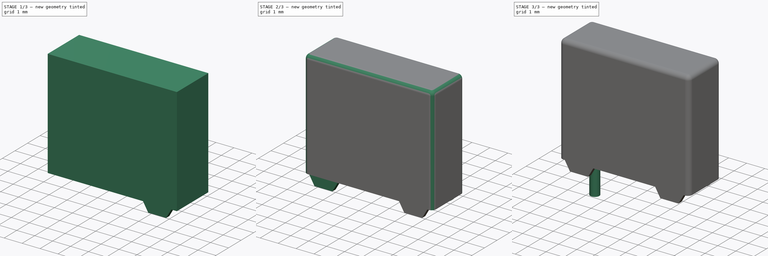
[diagram: build sequence overview — one tinted view per stage of 3, left to right]
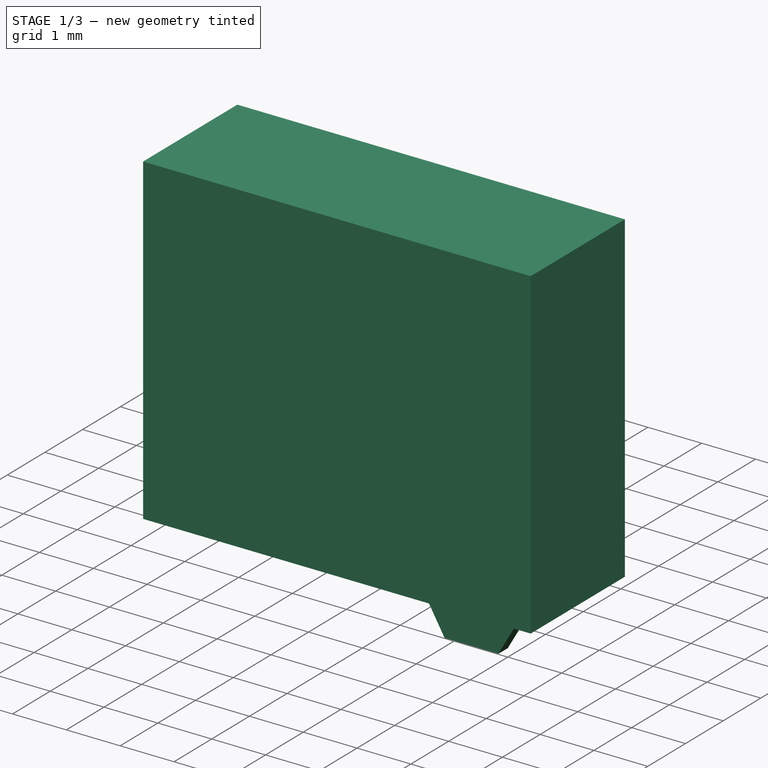
[diagram: stage 1 of 3 — iso view after this stage's code; geometry added in this stage tinted green]
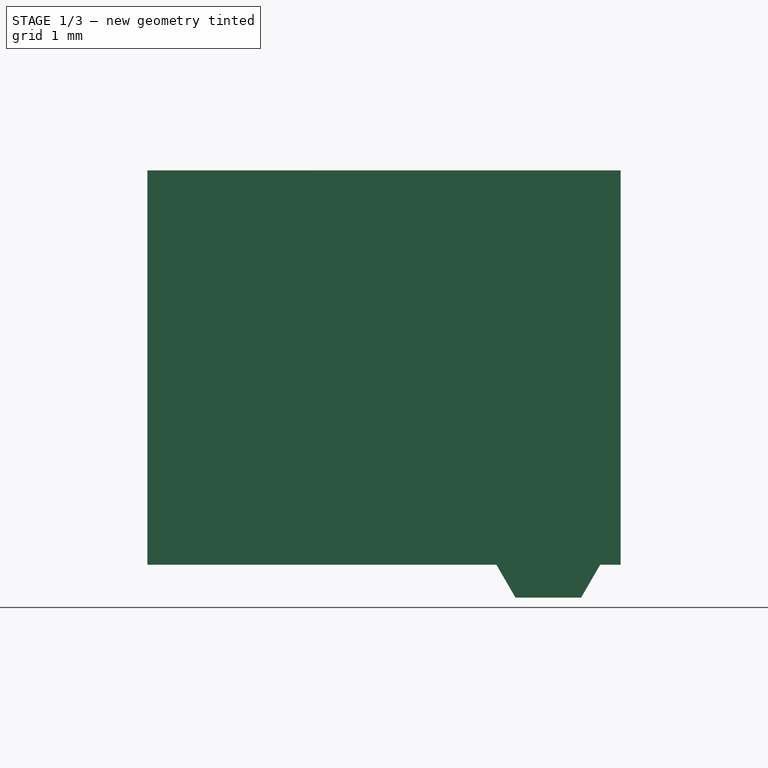
[diagram: stage 1 of 3 — front view after this stage's code; geometry added in this stage tinted green]
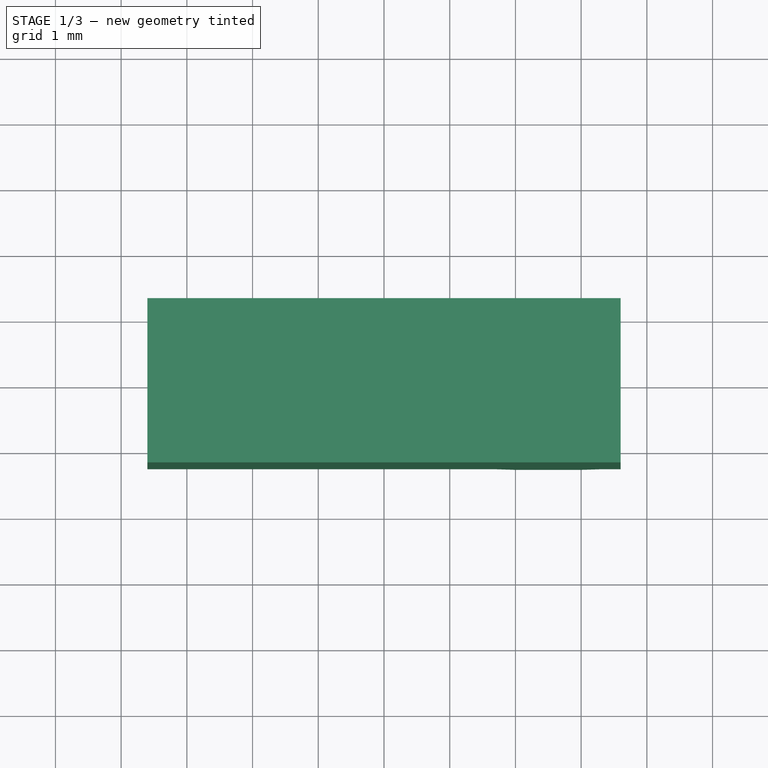
[diagram: stage 1 of 3 — top view after this stage's code; geometry added in this stage tinted green]
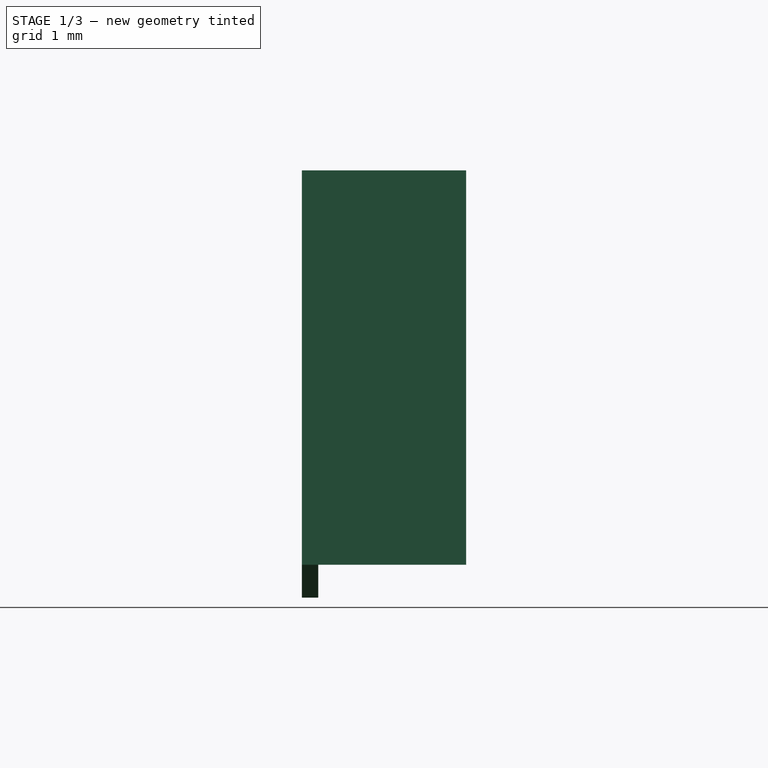
[diagram: stage 1 of 3 — right view after this stage's code; geometry added in this stage tinted green]
FCSTD DOCUMENT  (FreeCAD 0.19R16699 (Git))
Label: Kemet R82 Series
License: All rights reserved
LicenseURL: http://en.wikipedia.org/wiki/All_rights_reserved
objects: Sketcher::SketchObject×3, PartDesign::Pad×3, PartDesign::Body×3, PartDesign::Mirrored×2, Spreadsheet::Sheet×1, PartDesign::MultiTransform×1, PartDesign::FeatureBase×1, PartDesign::Fillet×1
note: 17 computed .brp shape members not serialized (recipe doc carries the construction recipe); baked Part::Feature solids carry a one-line shape summary decoded from their .brp

FEATURE [Spreadsheet::Sheet] Spreadsheet  label="Data"
  cells = A3=P; B3(P)==5mm; A4=B; B4(B)==2.5mm; A5=H; B5(H)==6.5mm; A6=L; B6(L)==7.2mm; A7=d; B7(d)==0.5mm; A8=LL; B8(LL)==2mm
FEATURE [Sketcher::SketchObject] Sketch  label="CaseSketch"
  MapMode = 5
  Placement = pos=(0,0,0) rot=(1,0,0;1.5708rad)
  Support = -> [XZ_Plane]
  expr: Constraints[10] = Data.H
  expr: Constraints[9] = Data.H - 0.5mm
  expr: Constraints[8] = Data.L
  sketch-geometry (4):
    g0: LineSegment StartX=-3.6 StartY=0.5 StartZ=0 EndX=3.6 EndY=0.5 EndZ=0
    g1: LineSegment StartX=3.6 StartY=0.5 StartZ=0 EndX=3.6 EndY=6.5 EndZ=0
    g2: LineSegment StartX=3.6 StartY=6.5 StartZ=0 EndX=-3.6 EndY=6.5 EndZ=0
    g3: LineSegment StartX=-3.6 StartY=6.5 StartZ=0 EndX=-3.6 EndY=0.5 EndZ=0
  constraints (11):
    c: Coincident(g0,g1)
    c: Coincident(g1,g2)
    c: Coincident(g2,g3)
    c: Coincident(g3,g0)
    c: Horizontal(g0)
    c: Vertical(g1)
    c: Vertical(g3)
    c: Symmetric(g1,g2,g-2)
    c: DistanceX(g2,g2) = 7.2
    c: DistanceY(g1,g1) = 6
    c: DistanceY(g-1,g1) = 6.5
FEATURE [PartDesign::Pad] Pad  label="CasePad"
  Length = 2.5
  Length2 = 100
  Midplane = true
  Placement = pos=(0,0,0) rot=(1,0,0;1.5708rad)
  Profile = -> Sketch
  Type = 0
  expr: Length = Data.B
FEATURE [Sketcher::SketchObject] Sketch002  label="StandoffSketch"
  AttachmentOffset = pos=(0,0,1) rot=(0,0,1;0rad)
  MapMode = 5
  Placement = pos=(0,-1,-2e-16) rot=(1,0,0;1.5708rad)
  Support = -> [XZ_Plane]
  expr: AttachmentOffset.Base.z = Data.B / 2 - 0.25mm
  expr: Constraints[13] = Data.P / 2
  sketch-geometry (5):
    g0: LineSegment StartX=2 StartY=-1e-16 StartZ=0 EndX=3 EndY=-1e-16 EndZ=0
    g1: LineSegment StartX=3 StartY=-1e-16 StartZ=0 EndX=3.28868 EndY=0.5 EndZ=0
    g2: LineSegment StartX=3.28868 StartY=0.5 StartZ=0 EndX=1.71132 EndY=0.5 EndZ=0
    g3: LineSegment StartX=1.71132 StartY=0.5 StartZ=0 EndX=2 EndY=-1e-16 EndZ=0
    g4: GeomPoint X=2.5 Y=0 Z=0
  constraints (14):
    c: Coincident(g0,g1)
    c: Coincident(g1,g2)
    c: Coincident(g2,g3)
    c: Coincident(g3,g0)
    c: Horizontal(g0)
    c: PointOnObject(g0,g-1)
    c: Equal(g3,g1)
    c: DistanceY(g1,g1) = 0.5
    c: Angle(g1,g0) = 2.0944
    c: Angle(g0,g3) = 2.0944
    c: PointOnObject(g4,g0)
    c: DistanceX(g4,g0) = 0.5
    c: DistanceX(g0,g4) = 0.5
    c: DistanceX(g-1,g4) = 2.5
FEATURE [PartDesign::Pad] Pad002  label="StandoffPad"
  BaseFeature = -> Pad
  Length = 0.25
  Length2 = 100
  Placement = pos=(0,0,0) rot=(1,0,0;1.5708rad)
  Profile = -> Sketch002
  Type = 0
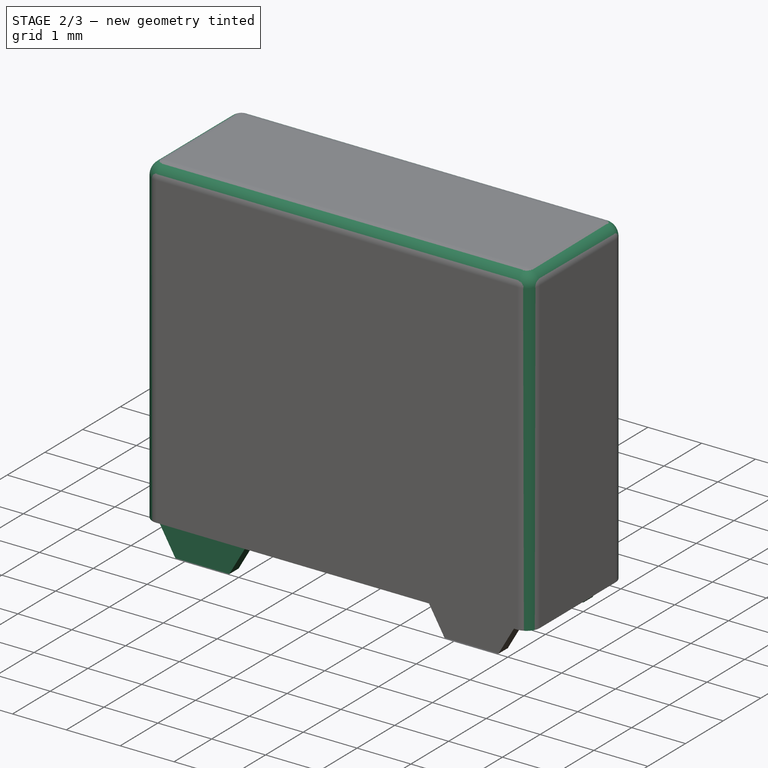
[diagram: stage 2 of 3 — iso view after this stage's code; geometry added in this stage tinted green]
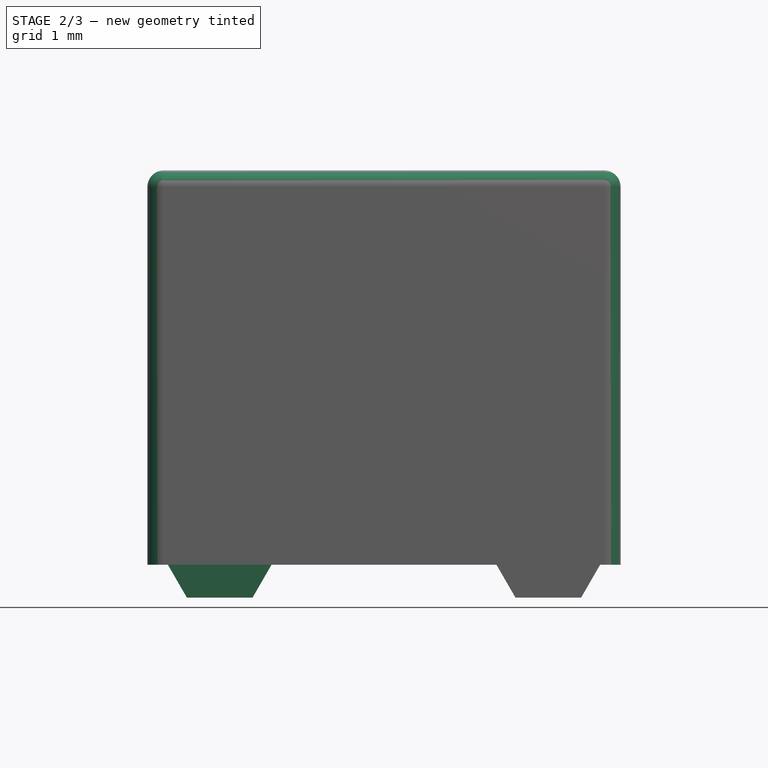
[diagram: stage 2 of 3 — front view after this stage's code; geometry added in this stage tinted green]
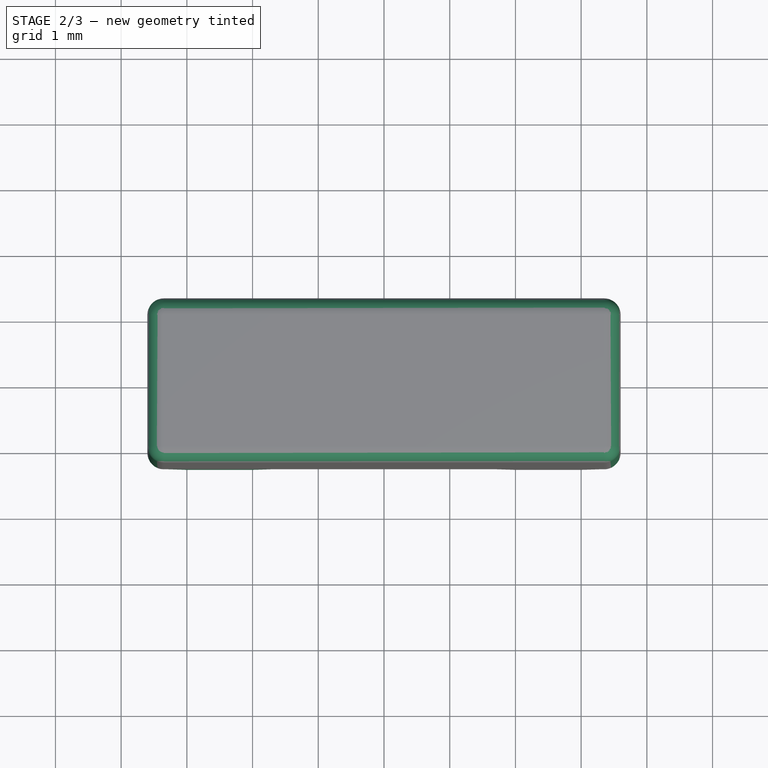
[diagram: stage 2 of 3 — top view after this stage's code; geometry added in this stage tinted green]
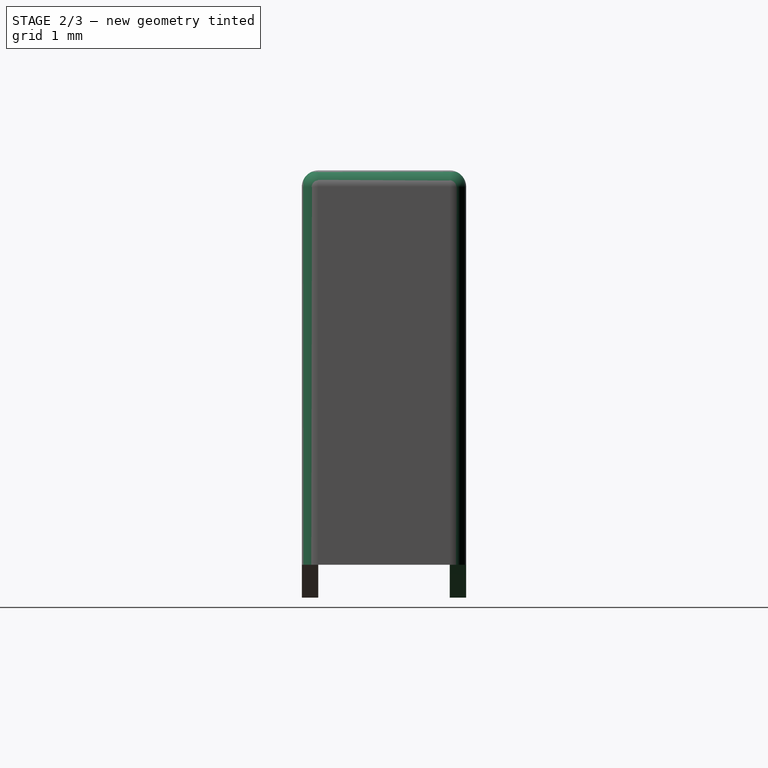
[diagram: stage 2 of 3 — right view after this stage's code; geometry added in this stage tinted green]
FEATURE [PartDesign::Mirrored] Mirrored
  MirrorPlane = -> YZ_Plane
  Placement = pos=(0,0,0) rot=(1,0,0;1.5708rad)
FEATURE [PartDesign::Mirrored] Mirrored001
  MirrorPlane = -> XZ_Plane
  Placement = pos=(0,0,0) rot=(1,0,0;1.5708rad)
FEATURE [PartDesign::MultiTransform] MultiTransform  label="StandoffMultiTransform"
  BaseFeature = -> Pad002
  Originals = -> [Pad002]
  Placement = pos=(0,0,0) rot=(1,0,0;1.5708rad)
  Refine = true
  Transformations = -> [Mirrored,Mirrored001]
FEATURE [PartDesign::Body] Body002  label="LeadClone"
  BaseFeature = -> Body001
  Group = -> [Clone]
  Origin = -> Origin002
  Placement = pos=(5,0,0) rot=(0,0,1;0rad)
  Tip = -> Clone
  expr: Placement.Base.x = Data.P
FEATURE [PartDesign::Fillet] Fillet
  Base = -> MultiTransform [Edge54,Edge56,Edge52,Edge55,Edge35,Edge37,Edge36,Edge53]
  BaseFeature = -> MultiTransform
  Placement = pos=(0,0,0) rot=(1,0,0;1.5708rad)
  Radius = 0.25
FEATURE [PartDesign::Body] Body  label="Case"
  Group = -> [Sketch,Pad,Sketch002,Pad002,MultiTransform,Mirrored,Mirrored001,Fillet]
  Origin = -> Origin
  Tip = -> Fillet
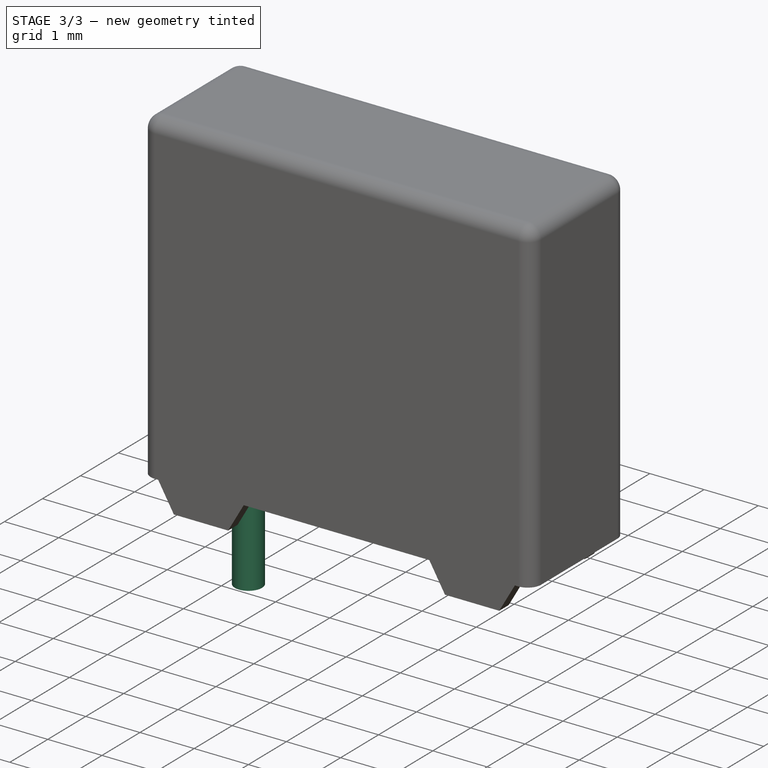
[diagram: stage 3 of 3 — iso view after this stage's code; geometry added in this stage tinted green]
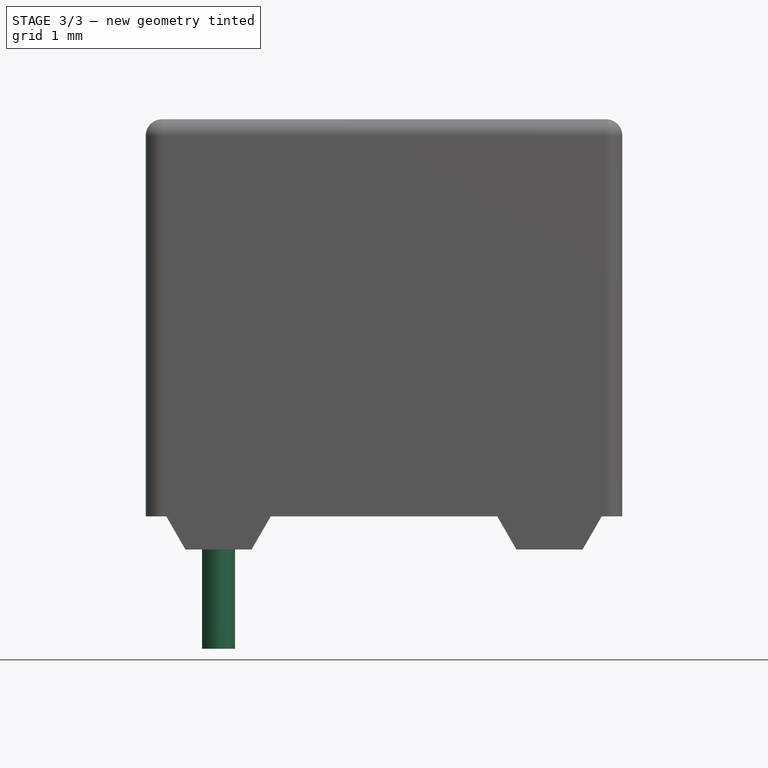
[diagram: stage 3 of 3 — front view after this stage's code; geometry added in this stage tinted green]
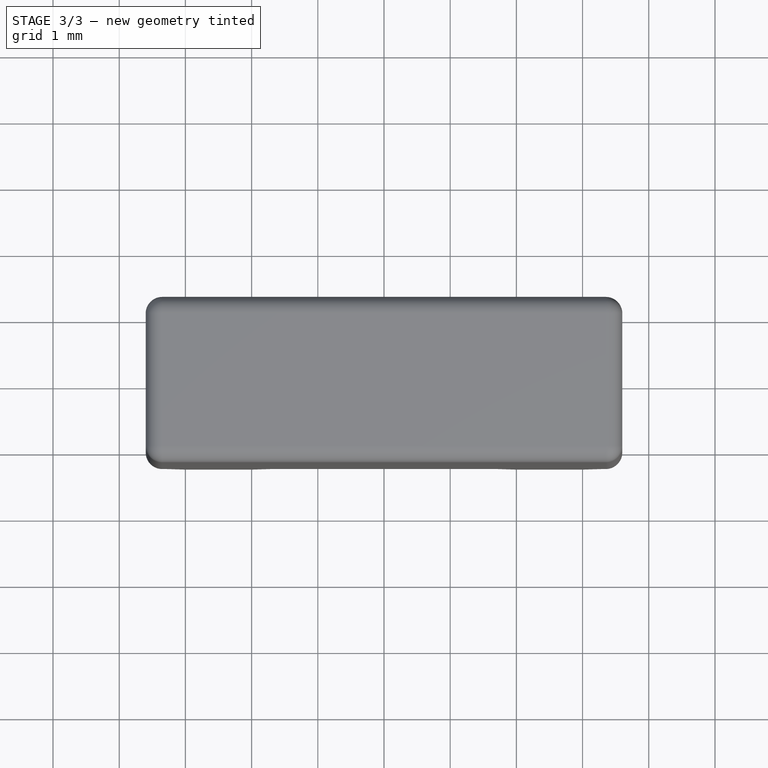
[diagram: stage 3 of 3 — top view after this stage's code; geometry added in this stage tinted green]
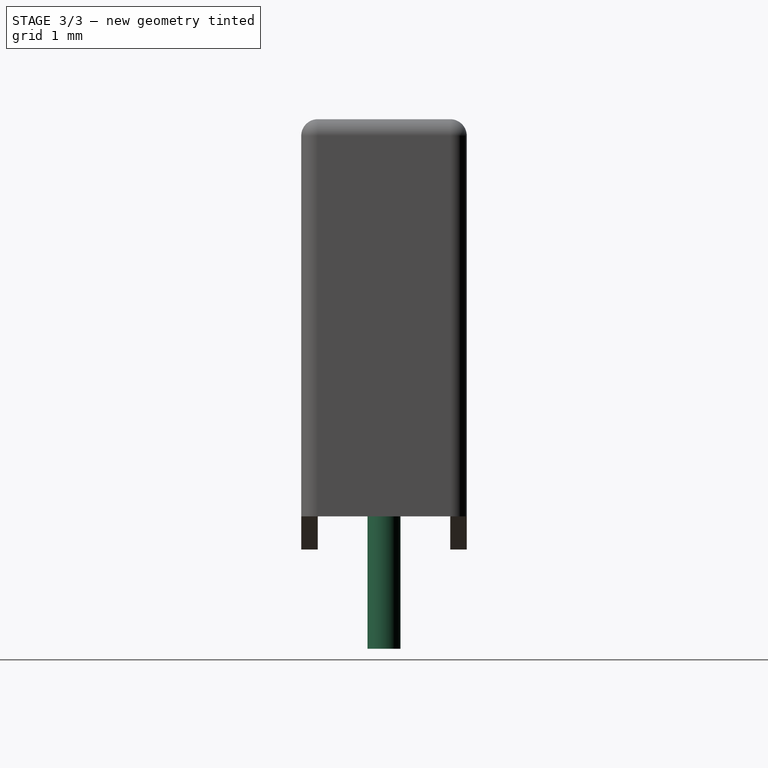
[diagram: stage 3 of 3 — right view after this stage's code; geometry added in this stage tinted green]
FEATURE [Sketcher::SketchObject] Sketch003  label="LeadSketch"
  AttachmentOffset = pos=(0,0,0.5) rot=(0,0,1;0rad)
  MapMode = 5
  Placement = pos=(0,0,0.5) rot=(0,0,1;0rad)
  Support = -> [XY_Plane001]
  expr: Constraints[2] = Data.P / 2
  expr: Constraints[1] = Data.d
  sketch-geometry (1):
    g0: Circle CenterX=-2.5 CenterY=0 CenterZ=0 NormalX=0 NormalY=0 NormalZ=1 AngleXU=0 Radius=0.25
  constraints (3):
    c: PointOnObject(g0,g-1)
    c: Diameter(g0) = 0.5
    c: DistanceX(g0,g-1) = 2.5
FEATURE [PartDesign::Pad] Pad003  label="LeadPad"
  Length = 2
  Length2 = 100
  Profile = -> Sketch003
  Reversed = true
  Type = 0
  expr: Length = Data.LL
FEATURE [PartDesign::Body] Body001  label="Lead"
  Group = -> [Sketch003,Pad003]
  Origin = -> Origin001
  Tip = -> Pad003
FEATURE [PartDesign::FeatureBase] Clone
  BaseFeature = -> Body001
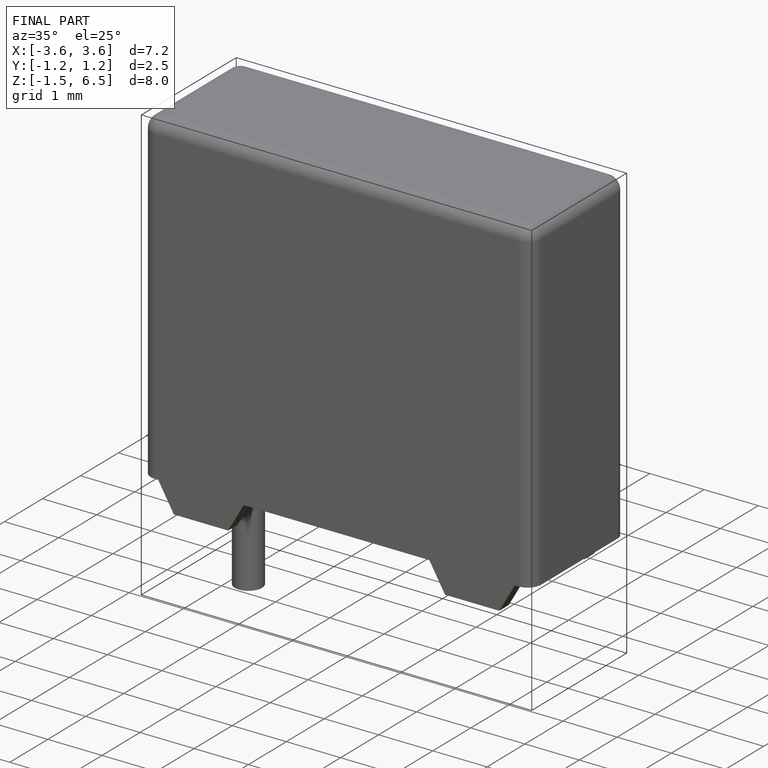
[diagram: finished part — iso view with bounding-box wireframe]
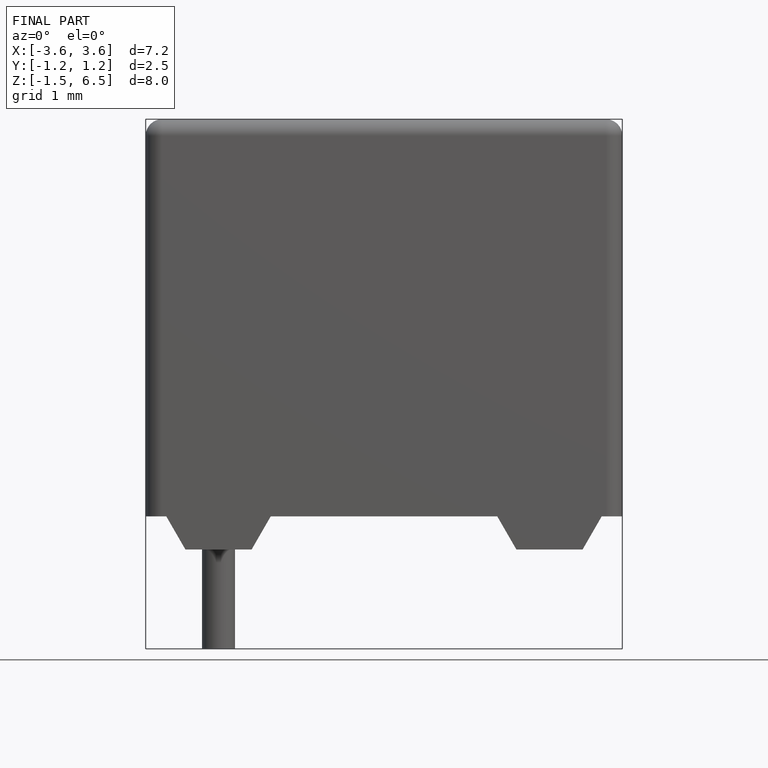
[diagram: finished part — front view with bounding-box wireframe]
